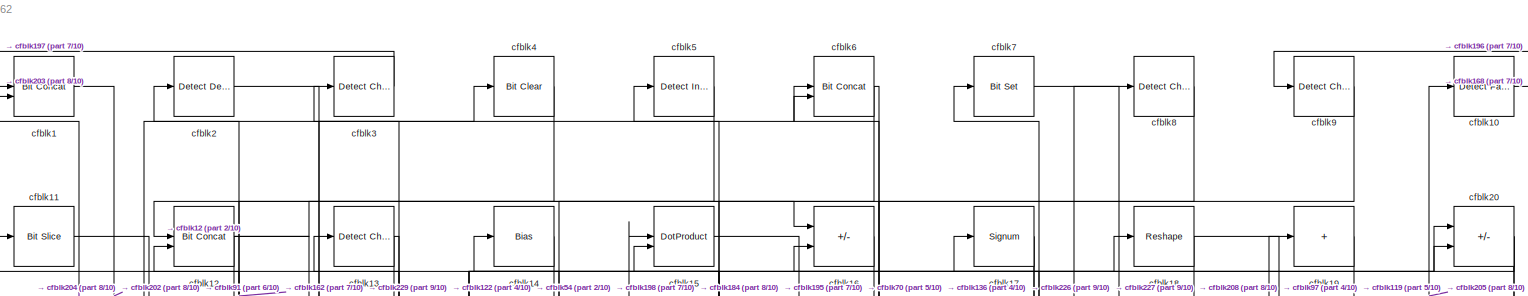
[diagram: root canvas - part 1/10, full width, top band]
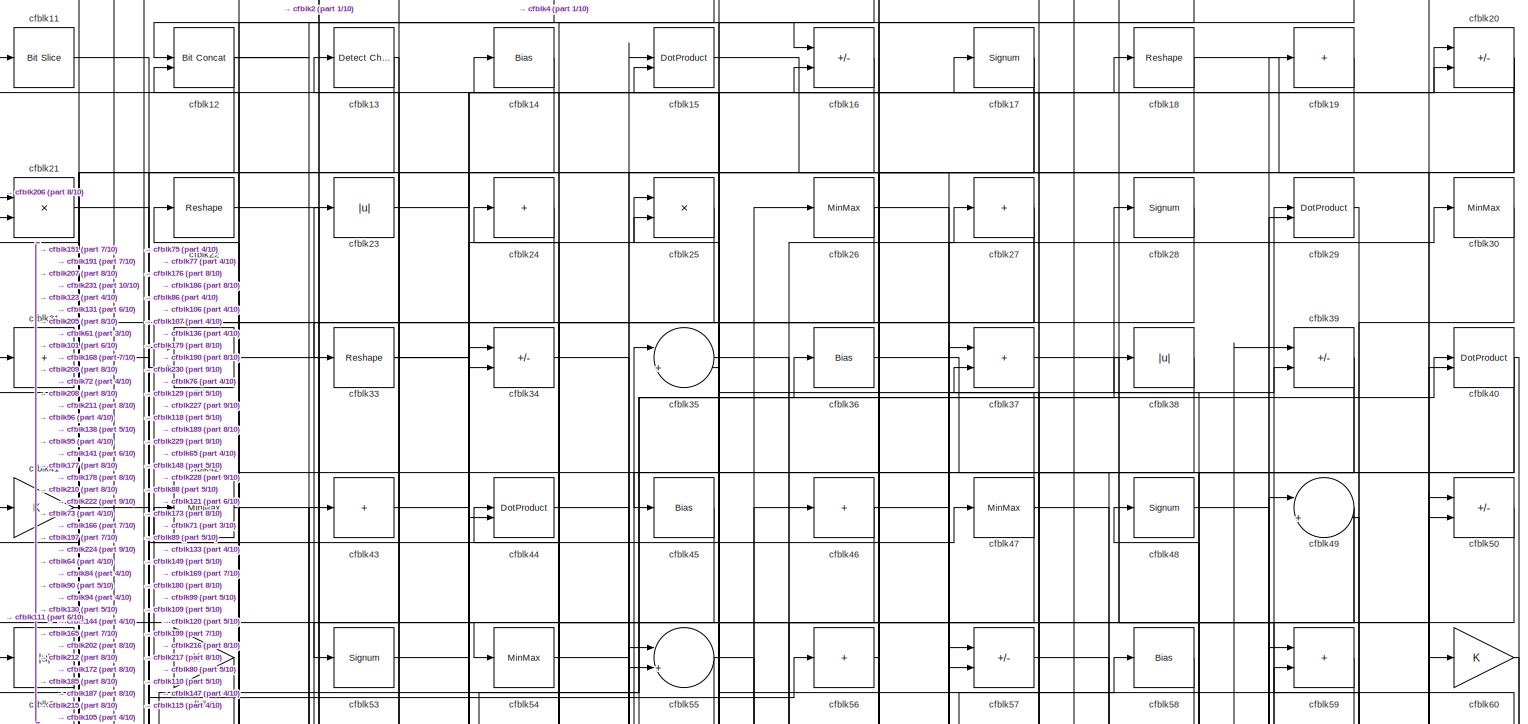
[diagram: root canvas - part 2/10, full width, top band]
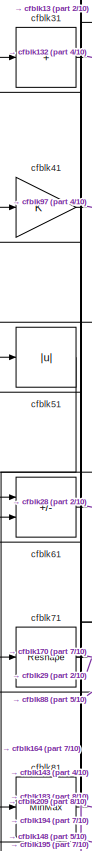
[diagram: root canvas - part 3/10, top left region]
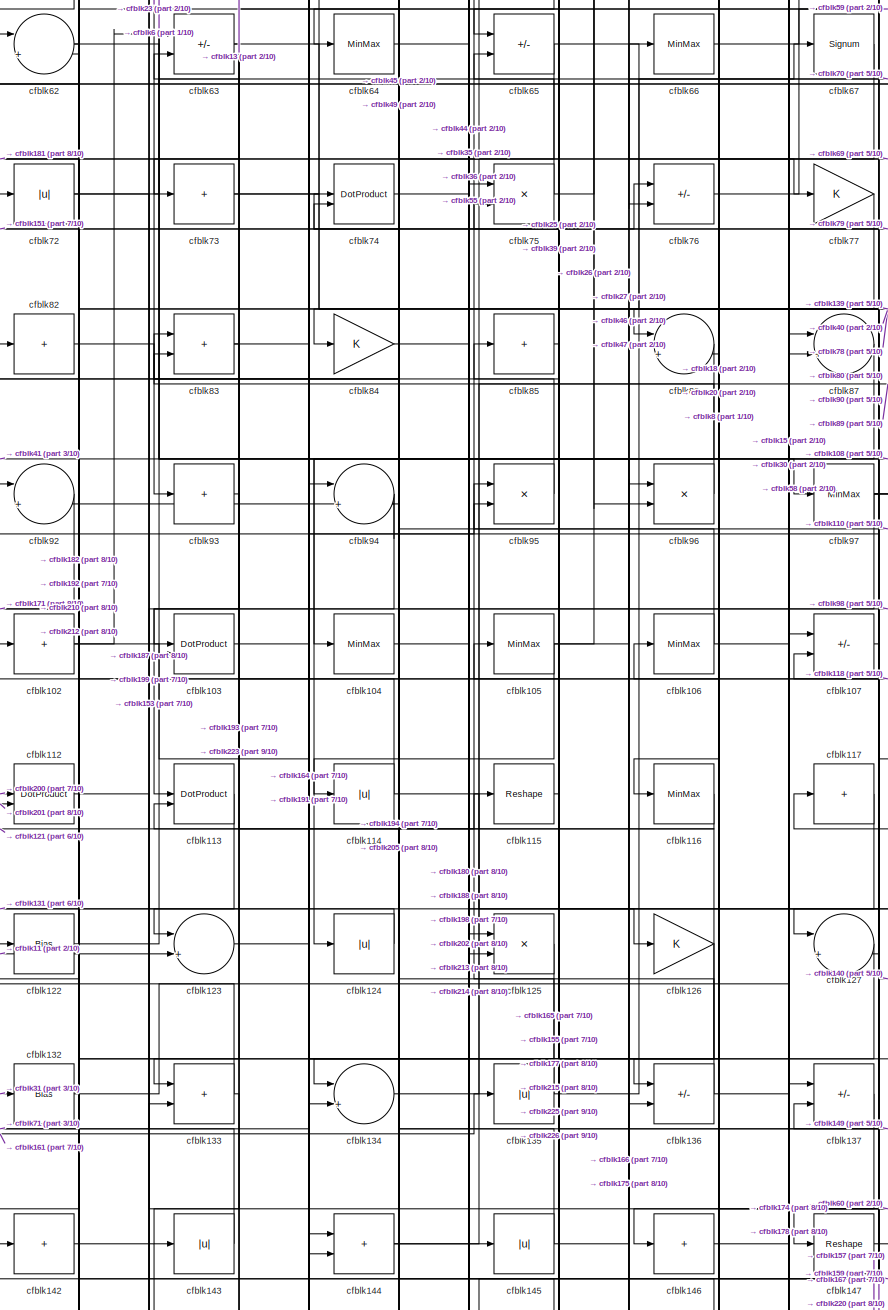
[diagram: root canvas - part 4/10, central region]
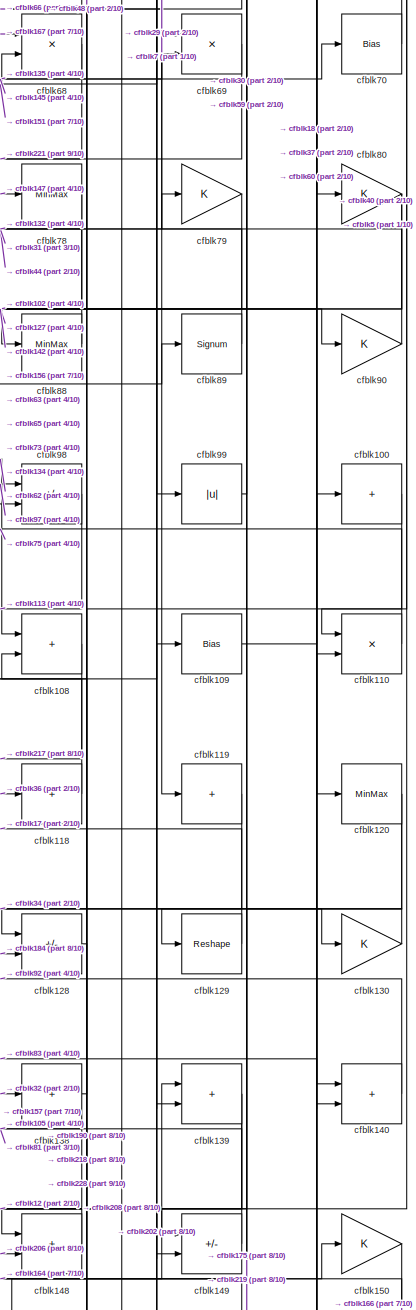
[diagram: root canvas - part 5/10, middle right region]
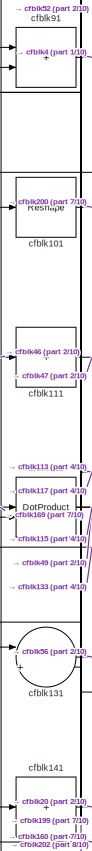
[diagram: root canvas - part 6/10, middle left region]
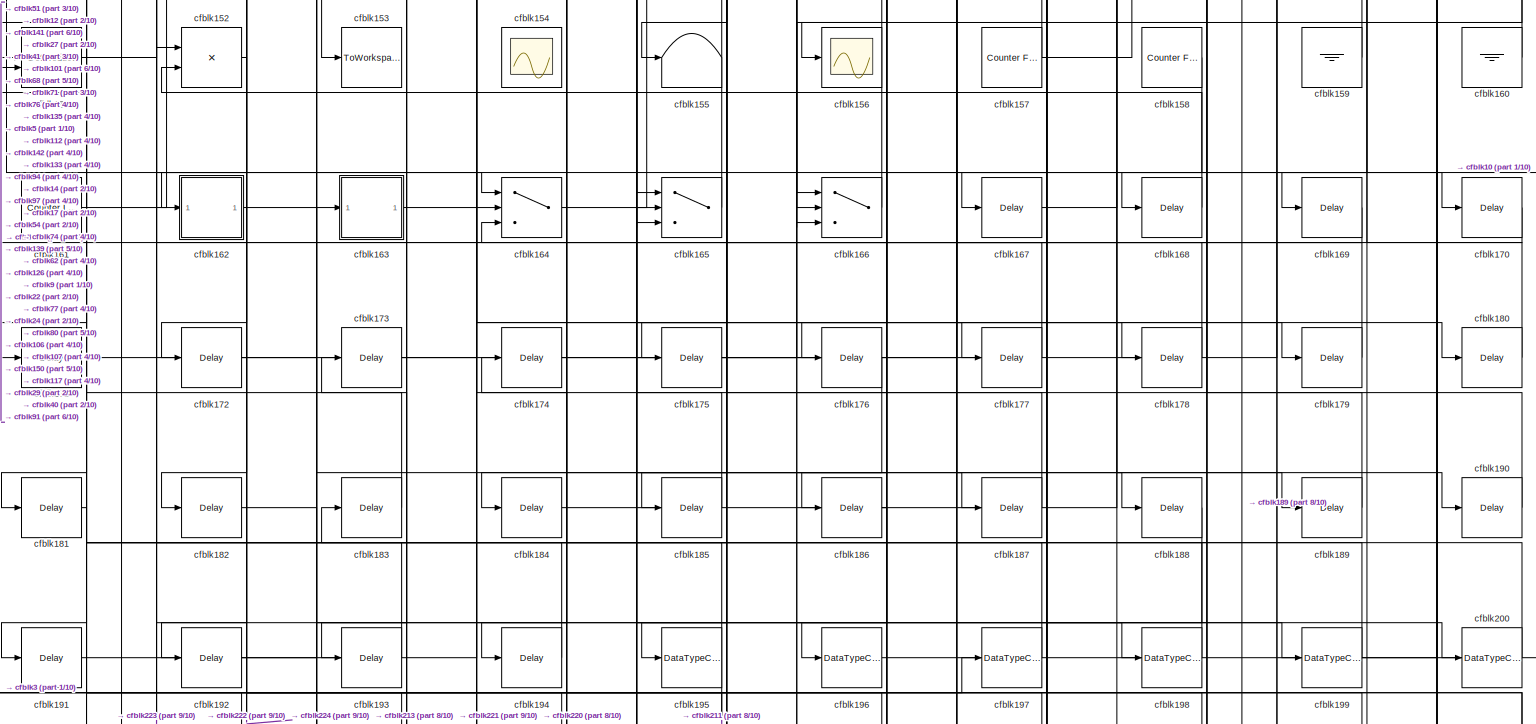
[diagram: root canvas - part 7/10, full width, bottom band]
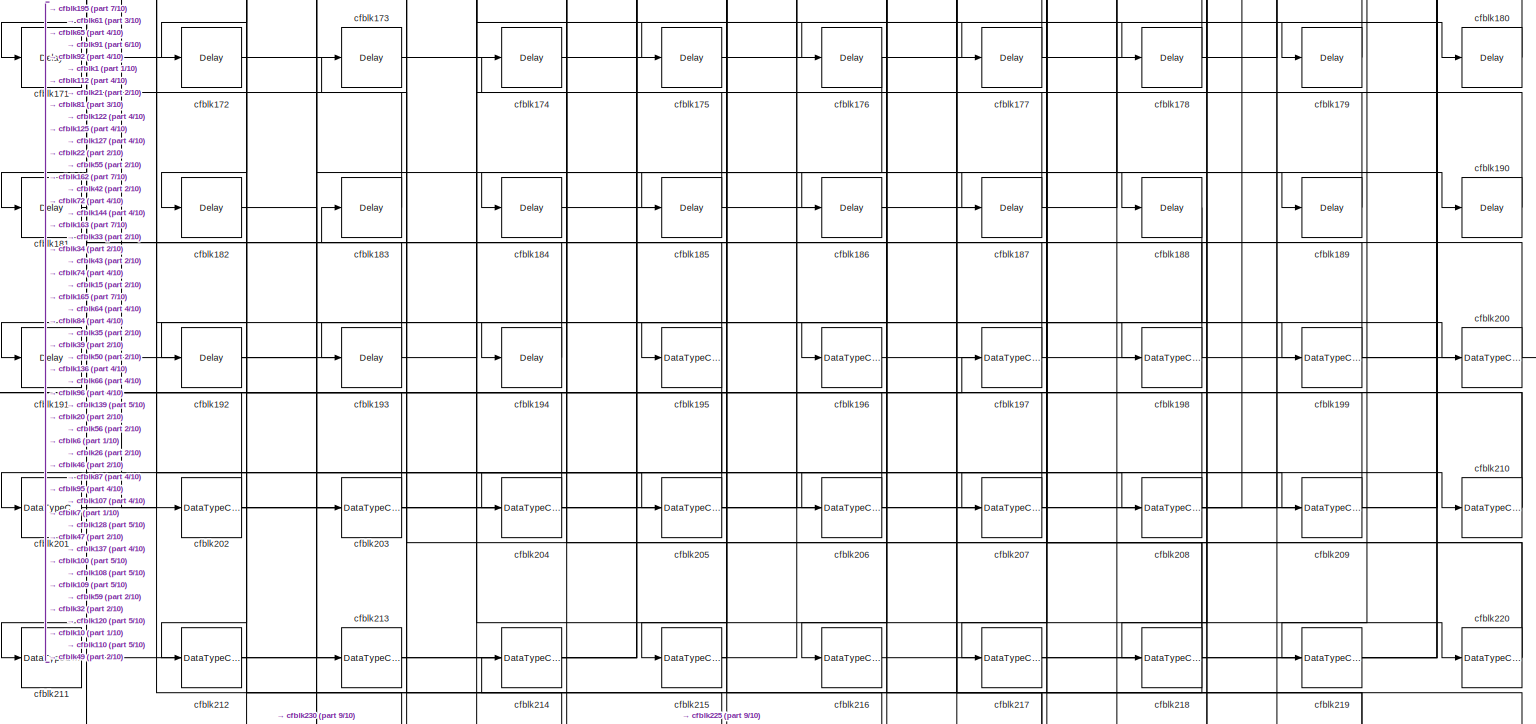
[diagram: root canvas - part 8/10, full width, bottom band]
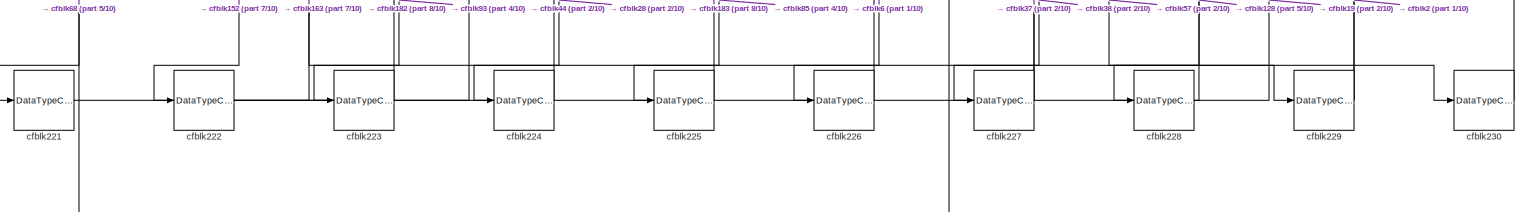
[diagram: root canvas - part 9/10, full width, bottom band]
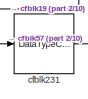
[diagram: root canvas - part 10/10, bottom left region]
MODEL slx_386460a56962
KIND model
CONFIG AbsTol = auto
CONFIG EnableMultiTasking = off
CONFIG FixedStep = auto
CONFIG MaxStep = auto
CONFIG MinStep = auto
CONFIG RelTol = 1e-3
CONFIG SampleTimeConstraint = Unconstrained
CONFIG SolverName = VariableStepAuto
CONFIG StartTime = 0.0
CONFIG StopTime = 10.0
BLOCK [Reference] cfblk1  REF=hdlsllib/Logic and Bit
Operations/Bit Concat
  SourceBlock = hdlsllib/Logic and Bit\nOperations/Bit Concat
  SourceType = Bit Concat
BLOCK [Reference] cfblk10  REF=hdlsllib/Logic and Bit
Operations/Detect Fall
Negative
  SourceBlock = hdlsllib/Logic and Bit\nOperations/Detect Fall\nNegative
  SourceType = Detect Fall Negative
BLOCK [Sum] cfblk100
  IconShape = rectangular
  Inputs = +
BLOCK [Reshape] cfblk101
BLOCK [Sum] cfblk102
  IconShape = rectangular
  Inputs = +
BLOCK [DotProduct] cfblk103
  OutDataTypeStr = Inherit: Inherit via internal rule
BLOCK [MinMax] cfblk104
BLOCK [MinMax] cfblk105
BLOCK [MinMax] cfblk106
BLOCK [Sum] cfblk107
  IconShape = rectangular
  Inputs = +-
BLOCK [Sum] cfblk108
  IconShape = rectangular
BLOCK [Bias] cfblk109
  Bias = 0.0
  SaturateOnIntegerOverflow = off
BLOCK [Reference] cfblk11  REF=hdlsllib/Logic and Bit
Operations/Bit Slice
  SourceBlock = hdlsllib/Logic and Bit\nOperations/Bit Slice
  SourceType = Bit Slice
BLOCK [Product] cfblk110
  Inputs = */
  RndMeth = Zero
  SaturateOnIntegerOverflow = on
BLOCK [Sum] cfblk111
  IconShape = rectangular
  Inputs = +
BLOCK [DotProduct] cfblk112
  OutDataTypeStr = Inherit: Inherit via internal rule
BLOCK [DotProduct] cfblk113
  OutDataTypeStr = Inherit: Inherit via internal rule
BLOCK [Abs] cfblk114
  SaturateOnIntegerOverflow = off
BLOCK [Reshape] cfblk115
BLOCK [MinMax] cfblk116
BLOCK [Sum] cfblk117
  IconShape = rectangular
  Inputs = +
BLOCK [Sum] cfblk118
  IconShape = rectangular
  Inputs = +
BLOCK [Sum] cfblk119
  IconShape = rectangular
  Inputs = +
BLOCK [Reference] cfblk12  REF=hdlsllib/Logic and Bit
Operations/Bit Concat
  SourceBlock = hdlsllib/Logic and Bit\nOperations/Bit Concat
  SourceType = Bit Concat
BLOCK [MinMax] cfblk120
BLOCK [DotProduct] cfblk121
  OutDataTypeStr = Inherit: Inherit via internal rule
BLOCK [Bias] cfblk122
  Bias = 0.0
  SaturateOnIntegerOverflow = off
BLOCK [Sum] cfblk123
  Inputs = |++
BLOCK [Abs] cfblk124
  SaturateOnIntegerOverflow = off
BLOCK [Product] cfblk125
  Inputs = */
  RndMeth = Zero
  SaturateOnIntegerOverflow = on
BLOCK [Gain] cfblk126
BLOCK [Sum] cfblk127
  Inputs = |++
BLOCK [Sum] cfblk128
  IconShape = rectangular
  Inputs = +-
BLOCK [Reshape] cfblk129
BLOCK [Reference] cfblk13  REF=simulink/Logic and Bit
Operations/Detect
Change
  LibrarySourceBlock = hdlsllib/Logic and Bit\nOperations/Detect\nChange
  SourceBlock = simulink/Logic and Bit\nOperations/Detect\nChange
  SourceType = Detect Change
BLOCK [Gain] cfblk130
BLOCK [Sum] cfblk131
  Inputs = |++
BLOCK [Bias] cfblk132
  Bias = 0.0
  SaturateOnIntegerOverflow = off
BLOCK [Sum] cfblk133
  IconShape = rectangular
BLOCK [Sum] cfblk134
  Inputs = |++
BLOCK [Abs] cfblk135
  SaturateOnIntegerOverflow = off
BLOCK [Sum] cfblk136
  IconShape = rectangular
  Inputs = +-
BLOCK [Sum] cfblk137
  IconShape = rectangular
  Inputs = +-
BLOCK [Sum] cfblk138
  IconShape = rectangular
  Inputs = +
BLOCK [Sum] cfblk139
  IconShape = rectangular
BLOCK [Bias] cfblk14
  Bias = 0.0
  SaturateOnIntegerOverflow = off
BLOCK [Sum] cfblk140
  IconShape = rectangular
BLOCK [Sum] cfblk141
  IconShape = rectangular
  Inputs = +
BLOCK [Sum] cfblk142
  IconShape = rectangular
  Inputs = +
BLOCK [Abs] cfblk143
  SaturateOnIntegerOverflow = off
BLOCK [Sum] cfblk144
  IconShape = rectangular
BLOCK [Abs] cfblk145
  SaturateOnIntegerOverflow = off
BLOCK [Sum] cfblk146
  IconShape = rectangular
  Inputs = +
BLOCK [Reshape] cfblk147
BLOCK [Sum] cfblk148
  IconShape = rectangular
BLOCK [Sum] cfblk149
  IconShape = rectangular
  Inputs = +-
BLOCK [DotProduct] cfblk15
  OutDataTypeStr = Inherit: Inherit via internal rule
BLOCK [Gain] cfblk150
BLOCK [DotProduct] cfblk151
  OutDataTypeStr = Inherit: Inherit via internal rule
BLOCK [Product] cfblk152
  Inputs = */
  RndMeth = Zero
  SaturateOnIntegerOverflow = on
BLOCK [ToWorkspace] cfblk153
  MaxDataPoints = inf
  SampleTime = -1
  SaveFormat = Timeseries
  VariableName = simout
BLOCK [Scope] cfblk154
  Floating = on
  NumInputPorts = 1
  ScopeSpecificationString = Simulink.scopes.TimeScopeBlockCfg('CurrentConfiguration', extmgr.ConfigurationSet(extmgr.Configuration('Core','General UI',true,'FigureColor',[0.156862745098039 0.156862745098039 0.156862745098039]),extmgr.Configuration('Core','Source UI',true),extmgr.Configuration('Sources','WiredSimulink',true,'DataLoggingVariableName','ScopeData1','DataLoggingSaveFormat','StructureWithTime','DataLoggingLimitDat...<+2713ch>
BLOCK [Terminator] cfblk155
BLOCK [Scope] cfblk156
  Floating = off
  NumInputPorts = 1
  ScopeSpecificationString = Simulink.scopes.TimeScopeBlockCfg('CurrentConfiguration', extmgr.ConfigurationSet(extmgr.Configuration('Core','General UI',true),extmgr.Configuration('Core','Source UI',true),extmgr.Configuration('Sources','WiredSimulink',true,'DataLoggingVariableName','ScopeData2','DataLoggingSaveFormat','Array','DataLoggingLimitDataPoints',true,'DataLoggingDecimation','1'),extmgr.Configuration('Visuals','Time Do...<+868ch>
BLOCK [Reference] cfblk157  REF=hdlsllib/Sources/Counter
Free-Running
  SourceBlock = hdlsllib/Sources/Counter\nFree-Running
  SourceType = Counter Free-Running
BLOCK [Reference] cfblk158  REF=hdlsllib/Sources/Counter
Free-Running
  SourceBlock = hdlsllib/Sources/Counter\nFree-Running
  SourceType = Counter Free-Running
BLOCK [Ground] cfblk159
BLOCK [Sum] cfblk16
  IconShape = rectangular
  Inputs = +-
BLOCK [Ground] cfblk160
BLOCK [Reference] cfblk161  REF=hdlsllib/Sources/Counter
Limited
  SourceBlock = hdlsllib/Sources/Counter\nLimited
  SourceType = Counter Limited
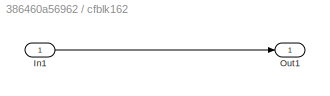
BLOCK [SubSystem] cfblk162
  LibrarySourceBlock = hdlsllib/Ports &\nSubsystems/Subsystem
BLOCK [Inport] cfblk162/In1
BLOCK [Outport] cfblk162/Out1
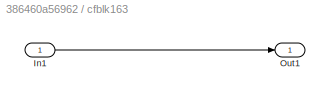
BLOCK [SubSystem] cfblk163
  LibrarySourceBlock = hdlsllib/Ports &\nSubsystems/Subsystem
BLOCK [Inport] cfblk163/In1
BLOCK [Outport] cfblk163/Out1
BLOCK [Switch] cfblk164
  InputSameDT = off
  SaturateOnIntegerOverflow = off
BLOCK [Switch] cfblk165
  InputSameDT = off
  SaturateOnIntegerOverflow = off
BLOCK [Switch] cfblk166
  InputSameDT = off
  SaturateOnIntegerOverflow = off
BLOCK [Delay] cfblk167
  InputPortMap = u0
  SampleTime = 1
BLOCK [Delay] cfblk168
  InputPortMap = u0
  SampleTime = 1
BLOCK [Delay] cfblk169
  InputPortMap = u0
  SampleTime = 1
BLOCK [Signum] cfblk17
BLOCK [Delay] cfblk170
  InputPortMap = u0
  SampleTime = 1
BLOCK [Delay] cfblk171
  InputPortMap = u0
  SampleTime = 1
BLOCK [Delay] cfblk172
  InputPortMap = u0
  SampleTime = 1
BLOCK [Delay] cfblk173
  InputPortMap = u0
  SampleTime = 1
BLOCK [Delay] cfblk174
  InputPortMap = u0
  SampleTime = 1
BLOCK [Delay] cfblk175
  InputPortMap = u0
  SampleTime = 1
BLOCK [Delay] cfblk176
  InputPortMap = u0
  SampleTime = 1
BLOCK [Delay] cfblk177
  InputPortMap = u0
  SampleTime = 1
BLOCK [Delay] cfblk178
  InputPortMap = u0
  SampleTime = 1
BLOCK [Delay] cfblk179
  InputPortMap = u0
  SampleTime = 1
BLOCK [Reshape] cfblk18
BLOCK [Delay] cfblk180
  InputPortMap = u0
  SampleTime = 1
BLOCK [Delay] cfblk181
  InputPortMap = u0
  SampleTime = 1
BLOCK [Delay] cfblk182
  InputPortMap = u0
  SampleTime = 1
BLOCK [Delay] cfblk183
  InputPortMap = u0
  SampleTime = 1
BLOCK [Delay] cfblk184
  InputPortMap = u0
  SampleTime = 1
BLOCK [Delay] cfblk185
  InputPortMap = u0
  SampleTime = 1
BLOCK [Delay] cfblk186
  InputPortMap = u0
  SampleTime = 1
BLOCK [Delay] cfblk187
  InputPortMap = u0
  SampleTime = 1
BLOCK [Delay] cfblk188
  InputPortMap = u0
  SampleTime = 1
BLOCK [Delay] cfblk189
  InputPortMap = u0
  SampleTime = 1
BLOCK [Sum] cfblk19
  IconShape = rectangular
  Inputs = +
BLOCK [Delay] cfblk190
  InputPortMap = u0
  SampleTime = 1
BLOCK [Delay] cfblk191
  InputPortMap = u0
  SampleTime = 1
BLOCK [Delay] cfblk192
  InputPortMap = u0
  SampleTime = 1
BLOCK [Delay] cfblk193
  InputPortMap = u0
  SampleTime = 1
BLOCK [Delay] cfblk194
  InputPortMap = u0
  SampleTime = 1
BLOCK [DataTypeConversion] cfblk195
  RndMeth = Floor
  SaturateOnIntegerOverflow = off
BLOCK [DataTypeConversion] cfblk196
  OutDataTypeStr = uint8
  RndMeth = Floor
  SaturateOnIntegerOverflow = off
BLOCK [DataTypeConversion] cfblk197
  OutDataTypeStr = uint8
  RndMeth = Floor
  SaturateOnIntegerOverflow = off
BLOCK [DataTypeConversion] cfblk198
  OutDataTypeStr = uint8
  RndMeth = Floor
  SaturateOnIntegerOverflow = off
BLOCK [DataTypeConversion] cfblk199
  RndMeth = Floor
  SaturateOnIntegerOverflow = off
BLOCK [Reference] cfblk2  REF=simulink/Logic and Bit
Operations/Detect
Decrease
  LibrarySourceBlock = hdlsllib/Logic and Bit\nOperations/Detect\nDecrease
  SourceBlock = simulink/Logic and Bit\nOperations/Detect\nDecrease
  SourceType = Detect Decrease
BLOCK [Sum] cfblk20
  IconShape = rectangular
  Inputs = +-
BLOCK [DataTypeConversion] cfblk200
  OutDataTypeStr = uint8
  RndMeth = Floor
  SaturateOnIntegerOverflow = off
BLOCK [DataTypeConversion] cfblk201
  OutDataTypeStr = uint8
  RndMeth = Floor
  SaturateOnIntegerOverflow = off
BLOCK [DataTypeConversion] cfblk202
  RndMeth = Floor
  SaturateOnIntegerOverflow = off
BLOCK [DataTypeConversion] cfblk203
  OutDataTypeStr = uint8
  RndMeth = Floor
  SaturateOnIntegerOverflow = off
BLOCK [DataTypeConversion] cfblk204
  OutDataTypeStr = uint8
  RndMeth = Floor
  SaturateOnIntegerOverflow = off
BLOCK [DataTypeConversion] cfblk205
  RndMeth = Floor
  SaturateOnIntegerOverflow = off
BLOCK [DataTypeConversion] cfblk206
  OutDataTypeStr = uint8
  RndMeth = Floor
  SaturateOnIntegerOverflow = off
BLOCK [DataTypeConversion] cfblk207
  OutDataTypeStr = uint8
  RndMeth = Floor
  SaturateOnIntegerOverflow = off
BLOCK [DataTypeConversion] cfblk208
  RndMeth = Floor
  SaturateOnIntegerOverflow = off
BLOCK [DataTypeConversion] cfblk209
  OutDataTypeStr = uint8
  RndMeth = Floor
  SaturateOnIntegerOverflow = off
BLOCK [Product] cfblk21
  Inputs = */
  RndMeth = Zero
  SaturateOnIntegerOverflow = on
BLOCK [DataTypeConversion] cfblk210
  RndMeth = Floor
  SaturateOnIntegerOverflow = off
BLOCK [DataTypeConversion] cfblk211
  OutDataTypeStr = uint8
  RndMeth = Floor
  SaturateOnIntegerOverflow = off
BLOCK [DataTypeConversion] cfblk212
  OutDataTypeStr = uint8
  RndMeth = Floor
  SaturateOnIntegerOverflow = off
BLOCK [DataTypeConversion] cfblk213
  OutDataTypeStr = uint8
  RndMeth = Floor
  SaturateOnIntegerOverflow = off
BLOCK [DataTypeConversion] cfblk214
  OutDataTypeStr = uint8
  RndMeth = Floor
  SaturateOnIntegerOverflow = off
BLOCK [DataTypeConversion] cfblk215
  RndMeth = Floor
  SaturateOnIntegerOverflow = off
BLOCK [DataTypeConversion] cfblk216
  OutDataTypeStr = uint8
  RndMeth = Floor
  SaturateOnIntegerOverflow = off
BLOCK [DataTypeConversion] cfblk217
  OutDataTypeStr = uint8
  RndMeth = Floor
  SaturateOnIntegerOverflow = off
BLOCK [DataTypeConversion] cfblk218
  RndMeth = Floor
  SaturateOnIntegerOverflow = off
BLOCK [DataTypeConversion] cfblk219
  OutDataTypeStr = uint8
  RndMeth = Floor
  SaturateOnIntegerOverflow = off
BLOCK [Reshape] cfblk22
BLOCK [DataTypeConversion] cfblk220
  RndMeth = Floor
  SaturateOnIntegerOverflow = off
BLOCK [DataTypeConversion] cfblk221
  OutDataTypeStr = uint8
  RndMeth = Floor
  SaturateOnIntegerOverflow = off
BLOCK [DataTypeConversion] cfblk222
  RndMeth = Floor
  SaturateOnIntegerOverflow = off
BLOCK [DataTypeConversion] cfblk223
  OutDataTypeStr = uint8
  RndMeth = Floor
  SaturateOnIntegerOverflow = off
BLOCK [DataTypeConversion] cfblk224
  OutDataTypeStr = uint8
  RndMeth = Floor
  SaturateOnIntegerOverflow = off
BLOCK [DataTypeConversion] cfblk225
  OutDataTypeStr = uint8
  RndMeth = Floor
  SaturateOnIntegerOverflow = off
BLOCK [DataTypeConversion] cfblk226
  OutDataTypeStr = uint8
  RndMeth = Floor
  SaturateOnIntegerOverflow = off
BLOCK [DataTypeConversion] cfblk227
  RndMeth = Floor
  SaturateOnIntegerOverflow = off
BLOCK [DataTypeConversion] cfblk228
  OutDataTypeStr = uint8
  RndMeth = Floor
  SaturateOnIntegerOverflow = off
BLOCK [DataTypeConversion] cfblk229
  RndMeth = Floor
  SaturateOnIntegerOverflow = off
BLOCK [Abs] cfblk23
  SaturateOnIntegerOverflow = off
BLOCK [DataTypeConversion] cfblk230
  OutDataTypeStr = uint8
  RndMeth = Floor
  SaturateOnIntegerOverflow = off
BLOCK [DataTypeConversion] cfblk231
  OutDataTypeStr = uint8
  RndMeth = Floor
  SaturateOnIntegerOverflow = off
BLOCK [Sum] cfblk24
  IconShape = rectangular
  Inputs = +
BLOCK [Product] cfblk25
  Inputs = */
  RndMeth = Zero
  SaturateOnIntegerOverflow = on
BLOCK [MinMax] cfblk26
BLOCK [Sum] cfblk27
  IconShape = rectangular
  Inputs = +
BLOCK [Signum] cfblk28
BLOCK [DotProduct] cfblk29
  OutDataTypeStr = Inherit: Inherit via internal rule
BLOCK [Reference] cfblk3  REF=simulink/Logic and Bit
Operations/Detect
Change
  LibrarySourceBlock = hdlsllib/Logic and Bit\nOperations/Detect\nChange
  SourceBlock = simulink/Logic and Bit\nOperations/Detect\nChange
  SourceType = Detect Change
BLOCK [MinMax] cfblk30
BLOCK [Sum] cfblk31
  IconShape = rectangular
  Inputs = +
BLOCK [Sum] cfblk32
  IconShape = rectangular
  Inputs = +-
BLOCK [Reshape] cfblk33
BLOCK [Sum] cfblk34
  IconShape = rectangular
  Inputs = +-
BLOCK [Sum] cfblk35
  Inputs = |++
BLOCK [Bias] cfblk36
  Bias = 0.0
  SaturateOnIntegerOverflow = off
BLOCK [Sum] cfblk37
  IconShape = rectangular
BLOCK [Abs] cfblk38
  SaturateOnIntegerOverflow = off
BLOCK [Sum] cfblk39
  IconShape = rectangular
  Inputs = +-
BLOCK [Reference] cfblk4  REF=simulink/Logic and Bit
Operations/Bit Clear
  LibrarySourceBlock = hdlsllib/Logic and Bit\nOperations/Bit Clear
  SourceBlock = simulink/Logic and Bit\nOperations/Bit Clear
  SourceType = Bit Clear
BLOCK [DotProduct] cfblk40
  OutDataTypeStr = Inherit: Inherit via internal rule
BLOCK [Gain] cfblk41
BLOCK [MinMax] cfblk42
BLOCK [Sum] cfblk43
  IconShape = rectangular
  Inputs = +
BLOCK [DotProduct] cfblk44
  OutDataTypeStr = Inherit: Inherit via internal rule
BLOCK [Bias] cfblk45
  Bias = 0.0
  SaturateOnIntegerOverflow = off
BLOCK [Sum] cfblk46
  IconShape = rectangular
  Inputs = +
BLOCK [MinMax] cfblk47
BLOCK [Signum] cfblk48
BLOCK [Sum] cfblk49
  Inputs = |++
BLOCK [Reference] cfblk5  REF=simulink/Logic and Bit
Operations/Detect
Increase
  LibrarySourceBlock = hdlsllib/Logic and Bit\nOperations/Detect\nIncrease
  SourceBlock = simulink/Logic and Bit\nOperations/Detect\nIncrease
  SourceType = Detect Increase
BLOCK [Sum] cfblk50
  IconShape = rectangular
  Inputs = +-
BLOCK [Abs] cfblk51
  SaturateOnIntegerOverflow = off
BLOCK [Gain] cfblk52
BLOCK [Signum] cfblk53
BLOCK [MinMax] cfblk54
BLOCK [Sum] cfblk55
  Inputs = |++
BLOCK [Sum] cfblk56
  IconShape = rectangular
  Inputs = +
BLOCK [Sum] cfblk57
  IconShape = rectangular
  Inputs = +-
BLOCK [Bias] cfblk58
  Bias = 0.0
  SaturateOnIntegerOverflow = off
BLOCK [Sum] cfblk59
  IconShape = rectangular
BLOCK [Reference] cfblk6  REF=hdlsllib/Logic and Bit
Operations/Bit Concat
  SourceBlock = hdlsllib/Logic and Bit\nOperations/Bit Concat
  SourceType = Bit Concat
BLOCK [Gain] cfblk60
BLOCK [Sum] cfblk61
  IconShape = rectangular
  Inputs = +-
BLOCK [Sum] cfblk62
  Inputs = |++
BLOCK [Sum] cfblk63
  IconShape = rectangular
  Inputs = +-
BLOCK [MinMax] cfblk64
BLOCK [Sum] cfblk65
  IconShape = rectangular
  Inputs = +-
BLOCK [MinMax] cfblk66
BLOCK [Signum] cfblk67
BLOCK [Product] cfblk68
  Inputs = */
  RndMeth = Zero
  SaturateOnIntegerOverflow = on
BLOCK [Product] cfblk69
  Inputs = */
  RndMeth = Zero
  SaturateOnIntegerOverflow = on
BLOCK [Reference] cfblk7  REF=simulink/Logic and Bit
Operations/Bit Set
  LibrarySourceBlock = hdlsllib/Logic and Bit\nOperations/Bit Set
  SourceBlock = simulink/Logic and Bit\nOperations/Bit Set
  SourceType = Bit Set
BLOCK [Bias] cfblk70
  Bias = 0.0
  SaturateOnIntegerOverflow = off
BLOCK [Reshape] cfblk71
BLOCK [Abs] cfblk72
  SaturateOnIntegerOverflow = off
BLOCK [Sum] cfblk73
  IconShape = rectangular
  Inputs = +
BLOCK [DotProduct] cfblk74
  OutDataTypeStr = Inherit: Inherit via internal rule
BLOCK [Product] cfblk75
  Inputs = */
  RndMeth = Zero
  SaturateOnIntegerOverflow = on
BLOCK [Sum] cfblk76
  IconShape = rectangular
  Inputs = +-
BLOCK [Gain] cfblk77
BLOCK [MinMax] cfblk78
BLOCK [Gain] cfblk79
BLOCK [Reference] cfblk8  REF=simulink/Logic and Bit
Operations/Detect
Change
  LibrarySourceBlock = hdlsllib/Logic and Bit\nOperations/Detect\nChange
  SourceBlock = simulink/Logic and Bit\nOperations/Detect\nChange
  SourceType = Detect Change
BLOCK [Gain] cfblk80
BLOCK [MinMax] cfblk81
BLOCK [Sum] cfblk82
  IconShape = rectangular
  Inputs = +
BLOCK [Sum] cfblk83
  IconShape = rectangular
BLOCK [Gain] cfblk84
BLOCK [Sum] cfblk85
  IconShape = rectangular
  Inputs = +
BLOCK [Sum] cfblk86
  Inputs = |++
BLOCK [Sum] cfblk87
  Inputs = |++
BLOCK [MinMax] cfblk88
BLOCK [Signum] cfblk89
BLOCK [Reference] cfblk9  REF=simulink/Logic and Bit
Operations/Detect
Change
  LibrarySourceBlock = hdlsllib/Logic and Bit\nOperations/Detect\nChange
  SourceBlock = simulink/Logic and Bit\nOperations/Detect\nChange
  SourceType = Detect Change
BLOCK [Gain] cfblk90
BLOCK [Sum] cfblk91
  IconShape = rectangular
BLOCK [Sum] cfblk92
  Inputs = |++
BLOCK [Sum] cfblk93
  IconShape = rectangular
  Inputs = +
BLOCK [Sum] cfblk94
  Inputs = |++
BLOCK [Product] cfblk95
  Inputs = */
  RndMeth = Zero
  SaturateOnIntegerOverflow = on
BLOCK [Product] cfblk96
  Inputs = */
  RndMeth = Zero
  SaturateOnIntegerOverflow = on
BLOCK [MinMax] cfblk97
BLOCK [Sum] cfblk98
  IconShape = rectangular
  Inputs = +-
BLOCK [Abs] cfblk99
  SaturateOnIntegerOverflow = off
LINE cfblk100:1 -> cfblk218:1
LINE cfblk101:1 -> cfblk200:1
NET cfblk102:1 -> cfblk134:2, cfblk63:1
LINE cfblk103:1 -> cfblk95:1
LINE cfblk104:1 -> cfblk145:1
NET cfblk105:1 -> cfblk124:1, cfblk27:1, cfblk46:1
NET cfblk106:1 -> cfblk39:2, cfblk82:1
LINE cfblk107:1 -> cfblk167:1
LINE cfblk108:1 -> cfblk217:1
LINE cfblk109:1 -> cfblk60:1
LINE cfblk10:1 -> cfblk168:1
LINE cfblk110:1 -> cfblk75:2
LINE cfblk111:1 -> cfblk47:1
LINE cfblk112:1 -> cfblk199:1
LINE cfblk113:1 -> cfblk131:1
NET cfblk114:1 -> cfblk126:1, cfblk62:2
LINE cfblk115:1 -> cfblk25:1
LINE cfblk116:1 -> cfblk113:2
LINE cfblk117:1 -> cfblk131:2
LINE cfblk118:1 -> cfblk83:1
LINE cfblk119:1 -> cfblk128:1
LINE cfblk11:1 -> cfblk123:2
NET cfblk120:1 -> cfblk175:1, cfblk219:1
NET cfblk121:1 -> cfblk115:1, cfblk49:1
LINE cfblk122:1 -> cfblk6:1
LINE cfblk123:1 -> cfblk25:2
LINE cfblk124:1 -> cfblk123:1
LINE cfblk125:1 -> cfblk212:1
NET cfblk126:1 -> cfblk155:1, cfblk164:2, cfblk63:2
LINE cfblk127:1 -> cfblk182:1
LINE cfblk128:1 -> cfblk228:1
LINE cfblk129:1 -> cfblk17:1
NET cfblk12:1 -> cfblk149:2, cfblk151:1, cfblk16:1
LINE cfblk130:1 -> cfblk129:1
LINE cfblk131:1 -> cfblk56:1
LINE cfblk132:1 -> cfblk79:1
NET cfblk133:1 -> cfblk121:2, cfblk193:1
LINE cfblk134:1 -> cfblk89:1
NET cfblk135:1 -> cfblk70:1, cfblk74:1
NET cfblk136:1 -> cfblk30:1, cfblk35:1
LINE cfblk137:1 -> cfblk146:1
LINE cfblk138:1 -> cfblk48:1
NET cfblk139:1 -> cfblk148:2, cfblk206:1
NET cfblk13:1 -> cfblk61:1, cfblk73:1
LINE cfblk140:1 -> cfblk92:1
LINE cfblk141:1 -> cfblk20:2
LINE cfblk142:1 -> cfblk153:1
LINE cfblk143:1 -> cfblk71:1
NET cfblk144:1 -> cfblk36:1, cfblk55:2
NET cfblk145:1 -> cfblk69:2, cfblk83:2
LINE cfblk146:1 -> cfblk87:1
LINE cfblk147:1 -> cfblk78:1
LINE cfblk148:1 -> cfblk81:1
LINE cfblk149:1 -> cfblk105:1
LINE cfblk14:1 -> cfblk34:2
LINE cfblk150:1 -> cfblk166:3
NET cfblk151:1 -> cfblk68:2, cfblk76:1
LINE cfblk152:1 -> cfblk222:1
NET cfblk157:1 -> cfblk106:1, cfblk150:1
LINE cfblk158:1 -> cfblk196:1
LINE cfblk159:1 -> cfblk117:1
LINE cfblk15:1 -> cfblk107:1
LINE cfblk160:1 -> cfblk91:1
LINE cfblk161:1 -> cfblk135:1
LINE cfblk162/In1:1 -> cfblk162/Out1:1
LINE cfblk162:1 -> cfblk213:1
LINE cfblk163/In1:1 -> cfblk163/Out1:1
LINE cfblk163:1 -> cfblk220:1
LINE cfblk164:1 -> cfblk139:1
LINE cfblk165:1 -> cfblk62:1
LINE cfblk166:1 -> cfblk24:1
LINE cfblk167:1 -> cfblk68:1
LINE cfblk168:1 -> cfblk12:2
LINE cfblk169:1 -> cfblk121:1
LINE cfblk16:1 -> cfblk33:1
LINE cfblk170:1 -> cfblk164:3
LINE cfblk171:1 -> cfblk144:1
LINE cfblk172:1 -> cfblk203:1
LINE cfblk173:1 -> cfblk59:1
LINE cfblk174:1 -> cfblk87:2
LINE cfblk175:1 -> cfblk96:1
LINE cfblk176:1 -> cfblk204:1
LINE cfblk177:1 -> cfblk95:2
LINE cfblk178:1 -> cfblk137:1
LINE cfblk179:1 -> cfblk32:1
NET cfblk17:1 -> cfblk165:3, cfblk32:2
LINE cfblk180:1 -> cfblk49:2
LINE cfblk181:1 -> cfblk201:1
LINE cfblk182:1 -> cfblk230:1
LINE cfblk183:1 -> cfblk61:2
LINE cfblk184:1 -> cfblk128:2
LINE cfblk185:1 -> cfblk34:1
LINE cfblk186:1 -> cfblk216:1
LINE cfblk187:1 -> cfblk35:2
LINE cfblk188:1 -> cfblk207:1
LINE cfblk189:1 -> cfblk165:2
NET cfblk18:1 -> cfblk120:1, cfblk86:1
LINE cfblk190:1 -> cfblk108:2
LINE cfblk191:1 -> cfblk94:1
LINE cfblk192:1 -> cfblk133:2
LINE cfblk193:1 -> cfblk151:2
LINE cfblk194:1 -> cfblk41:1
NET cfblk195:1 -> cfblk211:1, cfblk51:1
LINE cfblk196:1 -> cfblk9:1
LINE cfblk197:1 -> cfblk14:1
LINE cfblk198:1 -> cfblk3:1
NET cfblk199:1 -> cfblk141:1, cfblk40:2
LINE cfblk19:1 -> cfblk231:1
LINE cfblk1:1 -> cfblk202:1
LINE cfblk200:1 -> cfblk112:1
LINE cfblk201:1 -> cfblk112:2
NET cfblk202:1 -> cfblk109:1, cfblk55:1, cfblk66:1, cfblk91:2
LINE cfblk203:1 -> cfblk1:1
LINE cfblk204:1 -> cfblk1:2
NET cfblk205:1 -> cfblk10:1, cfblk74:2
LINE cfblk206:1 -> cfblk21:1
LINE cfblk207:1 -> cfblk21:2
NET cfblk208:1 -> cfblk110:2, cfblk39:1, cfblk7:1
LINE cfblk209:1 -> cfblk42:1
NET cfblk20:1 -> cfblk16:2, cfblk176:1, cfblk86:2
NET cfblk210:1 -> cfblk122:1, cfblk22:1
LINE cfblk211:1 -> cfblk43:1
LINE cfblk212:1 -> cfblk15:1
LINE cfblk213:1 -> cfblk125:1
LINE cfblk214:1 -> cfblk125:2
NET cfblk215:1 -> cfblk136:2, cfblk15:2
LINE cfblk216:1 -> cfblk50:1
LINE cfblk217:1 -> cfblk50:2
NET cfblk218:1 -> cfblk173:1, cfblk174:1, cfblk214:1
LINE cfblk219:1 -> cfblk100:1
LINE cfblk21:1 -> cfblk205:1
NET cfblk220:1 -> cfblk107:2, cfblk137:2
LINE cfblk221:1 -> cfblk163:1
NET cfblk222:1 -> cfblk19:1, cfblk44:2
LINE cfblk223:1 -> cfblk152:1
LINE cfblk224:1 -> cfblk152:2
LINE cfblk225:1 -> cfblk183:1
LINE cfblk226:1 -> cfblk85:1
NET cfblk227:1 -> cfblk37:1, cfblk6:2
LINE cfblk228:1 -> cfblk38:1
NET cfblk229:1 -> cfblk2:1, cfblk37:2
LINE cfblk22:1 -> cfblk166:1
LINE cfblk230:1 -> cfblk57:1
LINE cfblk231:1 -> cfblk57:2
LINE cfblk23:1 -> cfblk18:1
LINE cfblk24:1 -> cfblk52:1
LINE cfblk25:1 -> cfblk64:1
NET cfblk26:1 -> cfblk179:1, cfblk45:1
NET cfblk27:1 -> cfblk191:1, cfblk53:1
LINE cfblk28:1 -> cfblk224:1
LINE cfblk29:1 -> cfblk169:1
LINE cfblk2:1 -> cfblk54:1
LINE cfblk30:1 -> cfblk149:1
LINE cfblk31:1 -> cfblk132:1
LINE cfblk32:1 -> cfblk138:1
NET cfblk33:1 -> cfblk177:1, cfblk178:1
LINE cfblk34:1 -> cfblk130:1
LINE cfblk35:1 -> cfblk77:1
LINE cfblk36:1 -> cfblk118:1
LINE cfblk37:1 -> cfblk80:1
LINE cfblk38:1 -> cfblk227:1
NET cfblk39:1 -> cfblk185:1, cfblk72:1
LINE cfblk3:1 -> cfblk197:1
NET cfblk40:1 -> cfblk110:1, cfblk148:1, cfblk88:1
LINE cfblk41:1 -> cfblk97:1
LINE cfblk42:1 -> cfblk208:1
LINE cfblk43:1 -> cfblk210:1
LINE cfblk44:1 -> cfblk75:1
LINE cfblk45:1 -> cfblk84:1
NET cfblk46:1 -> cfblk111:1, cfblk190:1
NET cfblk47:1 -> cfblk11:1, cfblk189:1, cfblk76:2
LINE cfblk48:1 -> cfblk99:1
NET cfblk49:1 -> cfblk144:2, cfblk94:2
LINE cfblk4:1 -> cfblk12:1
LINE cfblk50:1 -> cfblk215:1
LINE cfblk51:1 -> cfblk164:1
LINE cfblk52:1 -> cfblk101:1
LINE cfblk53:1 -> cfblk20:1
LINE cfblk54:1 -> cfblk165:1
NET cfblk55:1 -> cfblk172:1, cfblk96:2
LINE cfblk56:1 -> cfblk186:1
LINE cfblk57:1 -> cfblk229:1
LINE cfblk58:1 -> cfblk65:1
LINE cfblk59:1 -> cfblk133:1
LINE cfblk5:1 -> cfblk162:1
LINE cfblk60:1 -> cfblk147:1
LINE cfblk61:1 -> cfblk28:1
NET cfblk62:1 -> cfblk108:1, cfblk192:1
NET cfblk63:1 -> cfblk103:1, cfblk139:2
LINE cfblk64:1 -> cfblk188:1
NET cfblk65:1 -> cfblk140:1, cfblk181:1
LINE cfblk66:1 -> cfblk69:1
LINE cfblk67:1 -> cfblk116:1
LINE cfblk68:1 -> cfblk221:1
LINE cfblk69:1 -> cfblk134:1
NET cfblk6:1 -> cfblk184:1, cfblk226:1
LINE cfblk70:1 -> cfblk5:1
NET cfblk71:1 -> cfblk170:1, cfblk29:2
NET cfblk72:1 -> cfblk187:1, cfblk67:1
NET cfblk73:1 -> cfblk40:1, cfblk90:1
LINE cfblk74:1 -> cfblk198:1
NET cfblk75:1 -> cfblk26:1, cfblk65:2
LINE cfblk76:1 -> cfblk58:1
LINE cfblk77:1 -> cfblk166:2
LINE cfblk78:1 -> cfblk102:1
LINE cfblk79:1 -> cfblk142:1
LINE cfblk7:1 -> cfblk119:1
NET cfblk80:1 -> cfblk127:1, cfblk156:1
LINE cfblk81:1 -> cfblk209:1
LINE cfblk82:1 -> cfblk93:1
NET cfblk83:1 -> cfblk140:2, cfblk143:1
LINE cfblk84:1 -> cfblk180:1
LINE cfblk85:1 -> cfblk225:1
LINE cfblk86:1 -> cfblk104:1
LINE cfblk87:1 -> cfblk114:1
LINE cfblk88:1 -> cfblk31:1
LINE cfblk89:1 -> cfblk29:1
LINE cfblk8:1 -> cfblk136:1
LINE cfblk90:1 -> cfblk44:1
LINE cfblk91:1 -> cfblk4:1
LINE cfblk92:1 -> cfblk171:1
LINE cfblk93:1 -> cfblk223:1
NET cfblk94:1 -> cfblk103:2, cfblk92:2
LINE cfblk95:1 -> cfblk13:1
LINE cfblk96:1 -> cfblk23:1
NET cfblk97:1 -> cfblk127:2, cfblk194:1, cfblk8:1, cfblk98:1, cfblk98:2
LINE cfblk98:1 -> cfblk113:1
LINE cfblk99:1 -> cfblk59:2
LINE cfblk9:1 -> cfblk195:1
note: NET lines group one-source signal fan-out (src -> all destinations, sorted); 1:1 wires keep LINE
